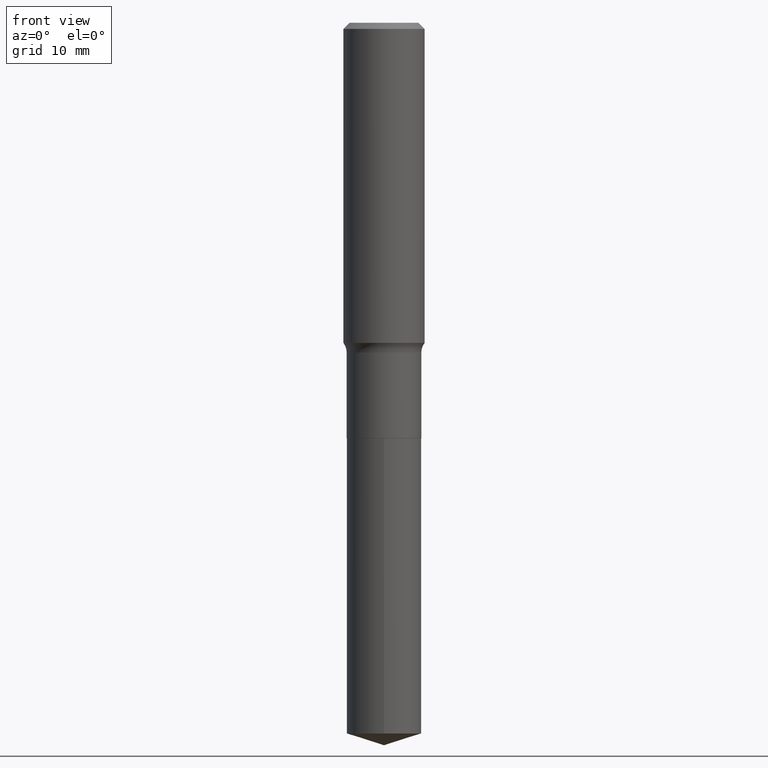
[diagram: clean part render]
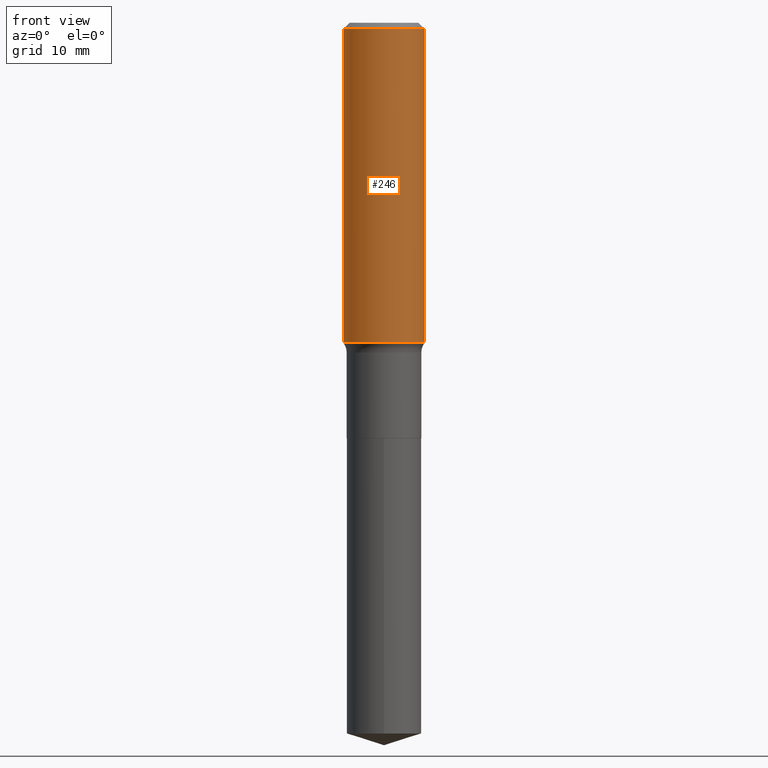
[diagram: same view with one face highlighted and labeled with its STEP entity id]
A machine part, front view. The second image highlights one B-rep face of the part: STEP entity #246.
In plain terms, the highlighted cylindrical surface (partial cylindrical patch) has radius 5 mm, axis along (-0, 0, 1).
Its self-contained STEP definition (entity closure, byte-faithful):
#2 = EDGE_CURVE ( 'NONE', #193, #15, #130, .T. ) ;
#15 = VERTEX_POINT ( 'NONE', #308 ) ;
#22 = EDGE_LOOP ( 'NONE', ( #168, #276, #388, #84 ) ) ;
#23 = AXIS2_PLACEMENT_3D ( 'NONE', #290, #448, #103 ) ;
#26 = DIRECTION ( 'NONE',  ( 1.000000000000000000, -6.982962677686266711E-15, 4.876176775795935793E-29 ) ) ;
#32 = DIRECTION ( 'NONE',  ( -2.445468806185136597E-29, 3.491481338843145583E-15, 1.000000000000000000 ) ) ;
#39 = CARTESIAN_POINT ( 'NONE',  ( -0.1968500000000001082, 1.398703375343757985E-15, -9.682923725166787881E-30 ) ) ;
#45 = LINE ( 'NONE', #443, #188 ) ;
#83 = CARTESIAN_POINT ( 'NONE',  ( -0.1968500000000000527, -1.362583810088790289E-15, -0.02952750000000019595 ) ) ;
#84 = ORIENTED_EDGE ( 'NONE', *, *, #2, .F. ) ;
#85 = DIRECTION ( 'NONE',  ( -2.445468806185136597E-29, 3.491481338843145583E-15, 1.000000000000000000 ) ) ;
#103 = DIRECTION ( 'NONE',  ( 1.000000000000000000, -6.982962677686266711E-15, 0.000000000000000000 ) ) ;
#107 = CYLINDRICAL_SURFACE ( 'NONE', #165, 0.1968500000000001082 ) ;
#130 = CIRCLE ( 'NONE', #466, 0.1968500000000000527 ) ;
#131 = VECTOR ( 'NONE', #420, 39.37007874015748143 ) ;
#141 = FACE_OUTER_BOUND ( 'NONE', #22, .T. ) ;
#165 = AXIS2_PLACEMENT_3D ( 'NONE', #409, #32, #26 ) ;
#168 = ORIENTED_EDGE ( 'NONE', *, *, #399, .F. ) ;
#176 = CIRCLE ( 'NONE', #23, 0.1968500000000001915 ) ;
#188 = VECTOR ( 'NONE', #453, 39.37007874015748143 ) ;
#193 = VERTEX_POINT ( 'NONE', #83 ) ;
#197 = VERTEX_POINT ( 'NONE', #386 ) ;
#212 = EDGE_CURVE ( 'NONE', #323, #15, #45, .T. ) ;
#222 = CARTESIAN_POINT ( 'NONE',  ( 7.220858017463209485E-31, -1.030947152326916609E-16, -0.02952750000000019595 ) ) ;
#226 = LINE ( 'NONE', #39, #131 ) ;
#246 = ADVANCED_FACE ( 'NONE', ( #141 ), #107, .T. ) ;
#276 = ORIENTED_EDGE ( 'NONE', *, *, #359, .T. ) ;
#290 = CARTESIAN_POINT ( 'NONE',  ( 3.795858306948668529E-29, -5.419479655632405650E-15, -1.552200664898319538 ) ) ;
#308 = CARTESIAN_POINT ( 'NONE',  ( 0.1968500000000000527, -1.477690918335233688E-15, -0.02952750000000019595 ) ) ;
#323 = VERTEX_POINT ( 'NONE', #328 ) ;
#328 = CARTESIAN_POINT ( 'NONE',  ( 0.1968500000000001915, -6.794075858734949625E-15, -1.552200664898319538 ) ) ;
#339 = DIRECTION ( 'NONE',  ( 1.000000000000000000, -6.982962677686266711E-15, 0.000000000000000000 ) ) ;
#359 = EDGE_CURVE ( 'NONE', #197, #323, #176, .T. ) ;
#386 = CARTESIAN_POINT ( 'NONE',  ( -0.1968500000000001915, -4.020776280288646285E-15, -1.552200664898319538 ) ) ;
#388 = ORIENTED_EDGE ( 'NONE', *, *, #212, .T. ) ;
#399 = EDGE_CURVE ( 'NONE', #197, #193, #226, .T. ) ;
#409 = CARTESIAN_POINT ( 'NONE',  ( 0.000000000000000000, 0.000000000000000000, 0.000000000000000000 ) ) ;
#420 = DIRECTION ( 'NONE',  ( -2.445468806185136877E-29, 3.491481338843145188E-15, 1.000000000000000000 ) ) ;
#443 = CARTESIAN_POINT ( 'NONE',  ( 0.1968500000000001082, -1.374596203102542397E-15, 9.598753983154305062E-30 ) ) ;
#448 = DIRECTION ( 'NONE',  ( -2.445468806185136597E-29, 3.491481338843145583E-15, 1.000000000000000000 ) ) ;
#453 = DIRECTION ( 'NONE',  ( -2.445468806185136877E-29, 3.491481338843145188E-15, 1.000000000000000000 ) ) ;
#466 = AXIS2_PLACEMENT_3D ( 'NONE', #222, #85, #339 ) ;